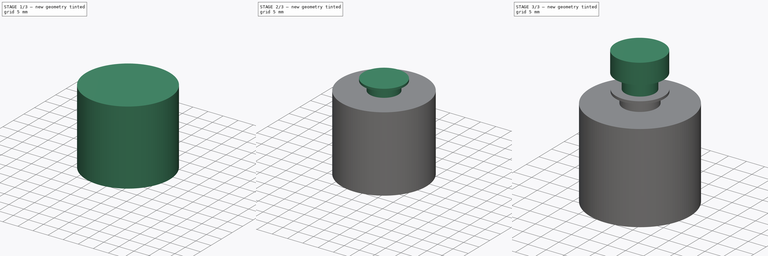
[diagram: build sequence overview — one tinted view per stage of 3, left to right]
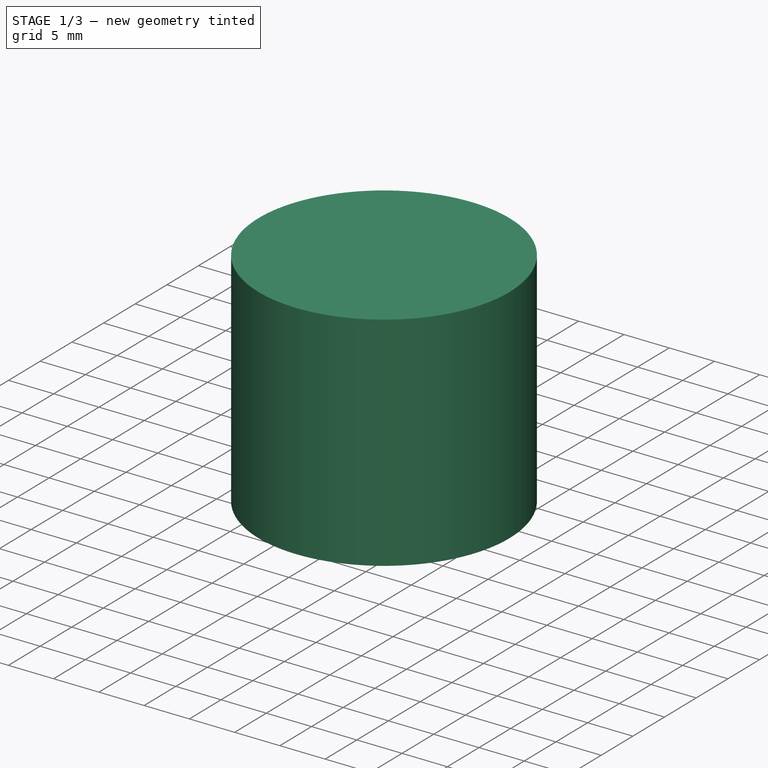
[diagram: stage 1 of 3 — iso view after this stage's code; geometry added in this stage tinted green]
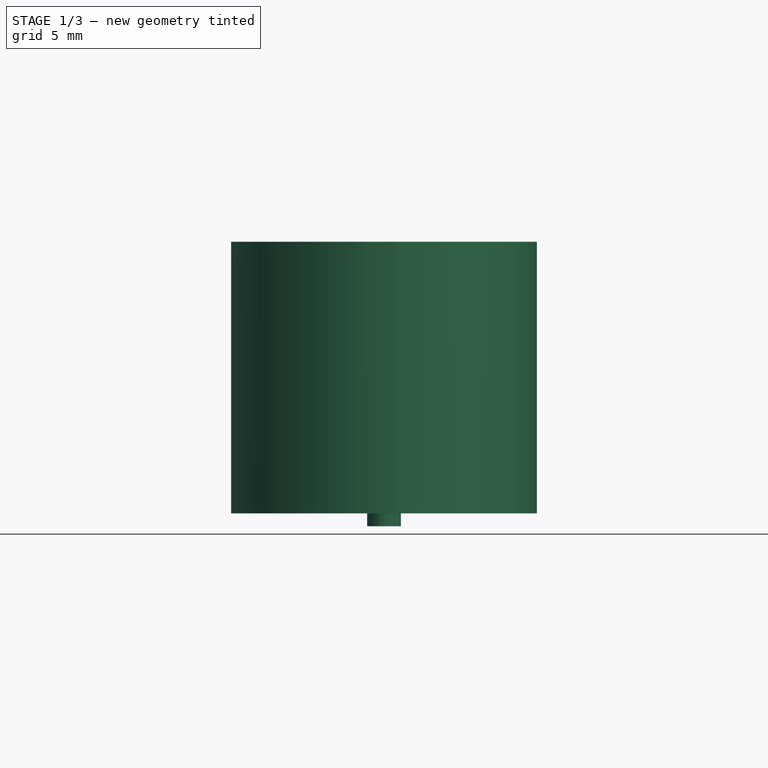
[diagram: stage 1 of 3 — front view after this stage's code; geometry added in this stage tinted green]
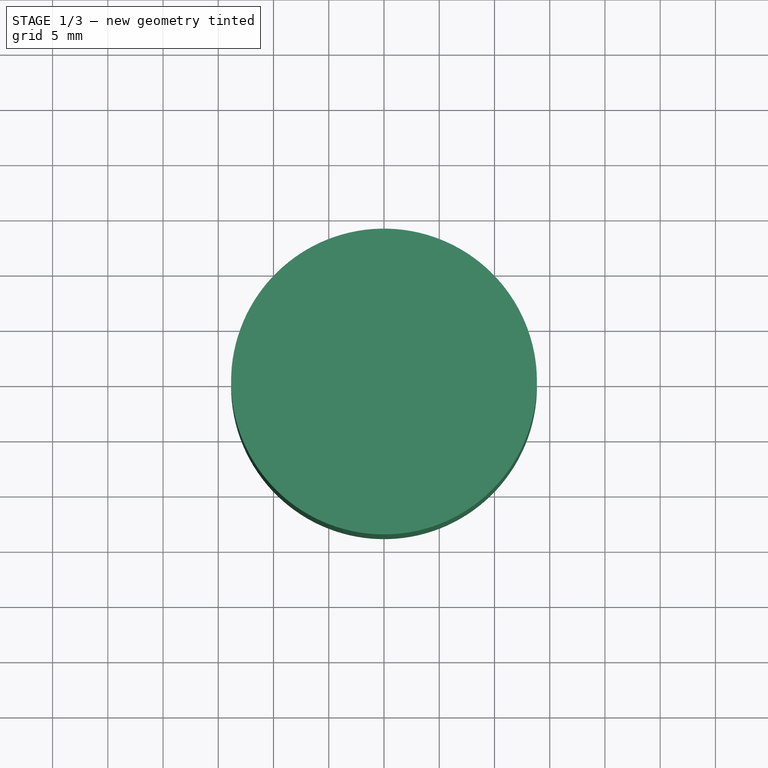
[diagram: stage 1 of 3 — top view after this stage's code; geometry added in this stage tinted green]
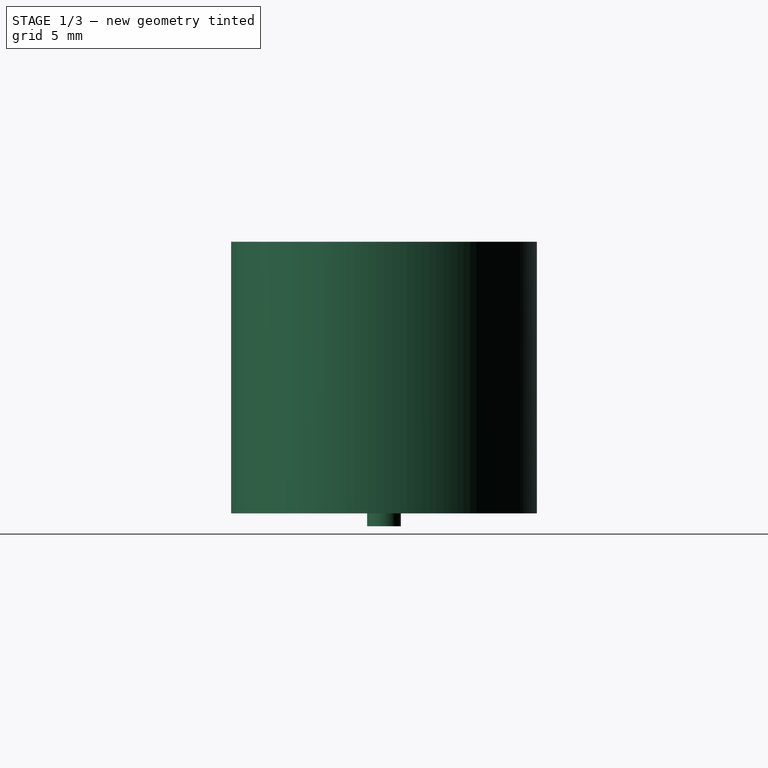
[diagram: stage 1 of 3 — right view after this stage's code; geometry added in this stage tinted green]
FCSTD DOCUMENT  (FreeCAD 0.17R13522 (Git))
Label: weapon_motor
License: All rights reserved
LicenseURL: http://en.wikipedia.org/wiki/All_rights_reserved
objects: Sketcher::SketchObject×7, PartDesign::Pad×6, PartDesign::Pocket×1, PartDesign::Body×1
note: 22 computed .brp shape members not serialized (recipe doc carries the construction recipe); baked Part::Feature solids carry a one-line shape summary decoded from their .brp

FEATURE [Sketcher::SketchObject] Sketch
  MapMode = 5
  Support = -> [XY_Plane]
  sketch-geometry (1):
    g0: Circle CenterX=0 CenterY=0 CenterZ=0 NormalX=0 NormalY=0 NormalZ=1 AngleXU=0 Radius=13.843
  constraints (2):
    c: Coincident(g0,g-1)
    c: Radius(g0) = 13.843
FEATURE [PartDesign::Pad] Pad
  Length = 24.5872
  Length2 = 99.9998
  Profile = -> Sketch
  Type = 0
FEATURE [Sketcher::SketchObject] Sketch001
  MapMode = 5
  Placement = pos=(0,0,0) rot=(1,0,0;3.14159rad)
  Support = -> [Pad]
  sketch-geometry (1):
    g0: Circle CenterX=0 CenterY=0 CenterZ=0 NormalX=0 NormalY=0 NormalZ=1 AngleXU=0 Radius=1.524
  constraints (2):
    c: Coincident(g0,g-1)
    c: Radius(g0) = 1.524
FEATURE [PartDesign::Pad] Pad001
  BaseFeature = -> Pad
  Length = 1.1684
  Length2 = 99.9998
  Profile = -> Sketch001
  Type = 0
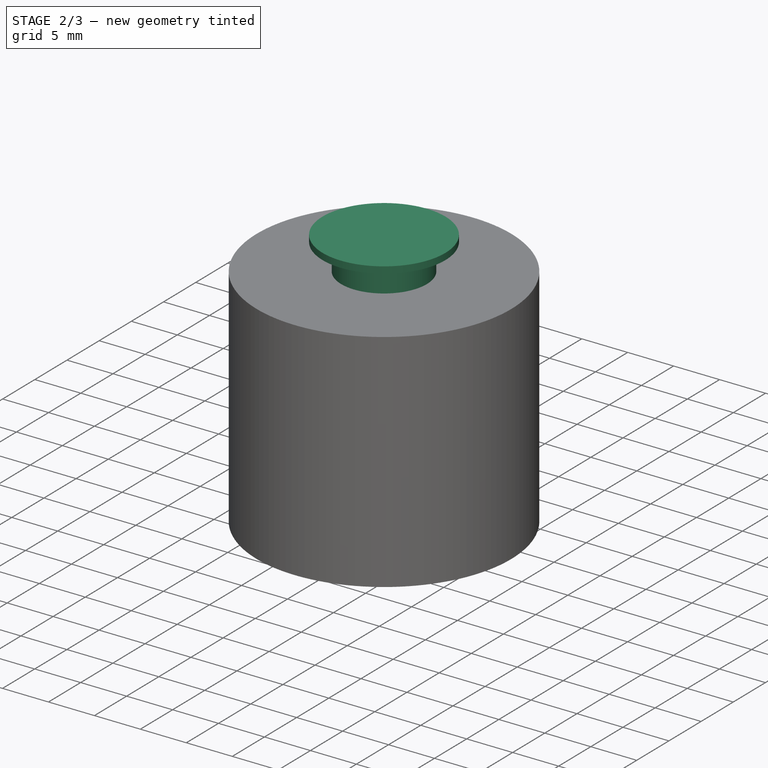
[diagram: stage 2 of 3 — iso view after this stage's code; geometry added in this stage tinted green]
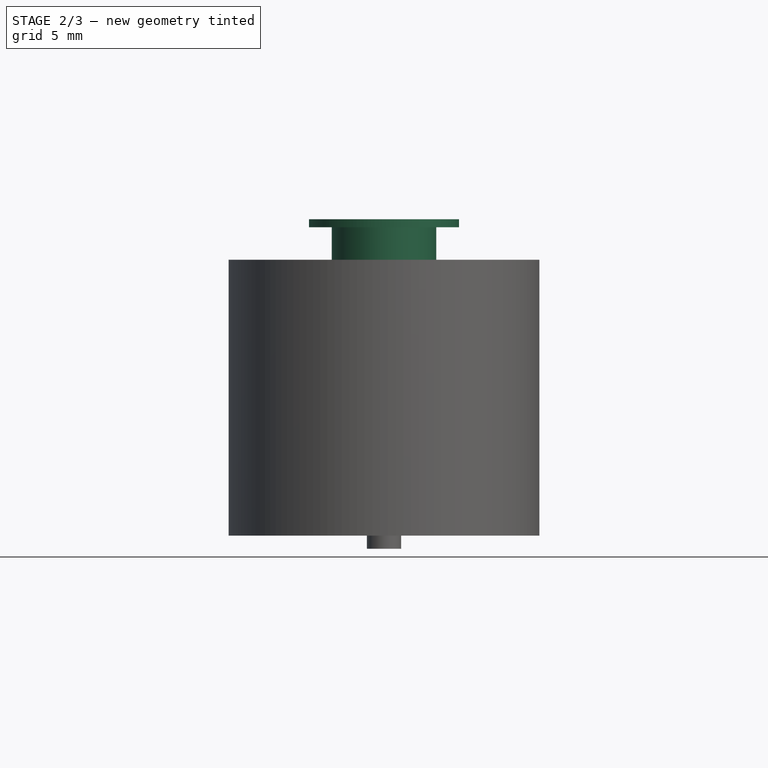
[diagram: stage 2 of 3 — front view after this stage's code; geometry added in this stage tinted green]
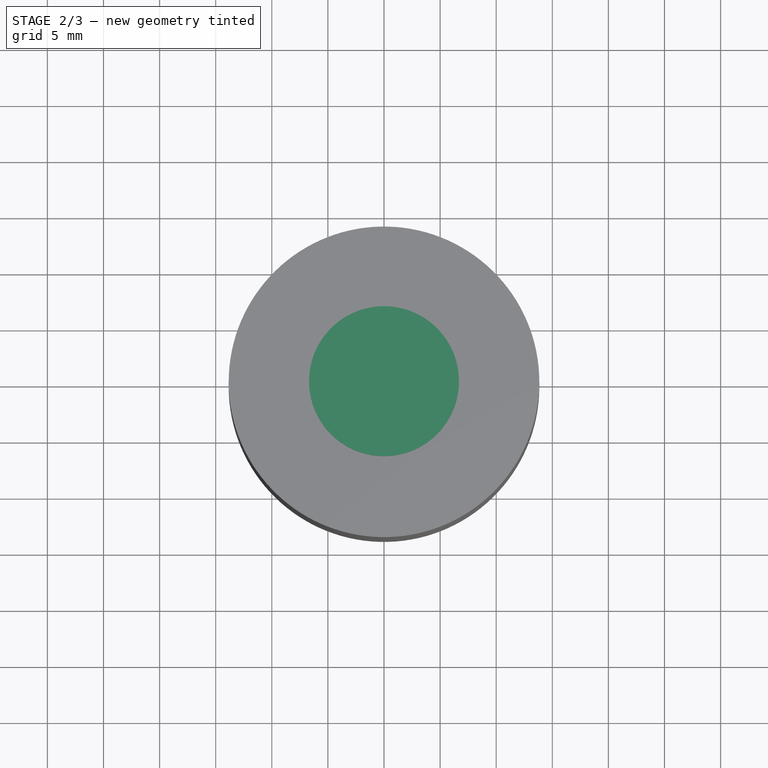
[diagram: stage 2 of 3 — top view after this stage's code; geometry added in this stage tinted green]
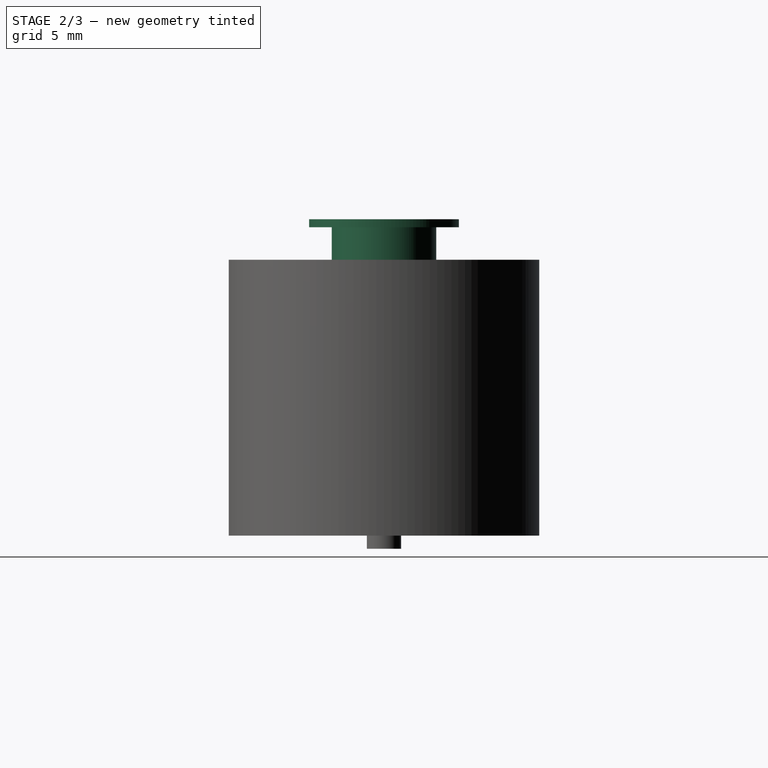
[diagram: stage 2 of 3 — right view after this stage's code; geometry added in this stage tinted green]
FEATURE [Sketcher::SketchObject] Sketch002
  MapMode = 5
  Placement = pos=(0,0,0) rot=(1,0,0;3.14159rad)
  Support = -> [Pad001]
  sketch-geometry (4):
    g0: Circle CenterX=0 CenterY=7.9629 CenterZ=0 NormalX=0 NormalY=0 NormalZ=1 AngleXU=0 Radius=1.27
    g1: Circle CenterX=9.51865 CenterY=0 CenterZ=0 NormalX=0 NormalY=0 NormalZ=1 AngleXU=0 Radius=1.27
    g2: Circle CenterX=0 CenterY=-7.9629 CenterZ=0 NormalX=0 NormalY=0 NormalZ=1 AngleXU=0 Radius=1.27
    g3: Circle CenterX=-9.51865 CenterY=0 CenterZ=0 NormalX=0 NormalY=0 NormalZ=1 AngleXU=0 Radius=1.27
  constraints (12):
    c: PointOnObject(g0,g-2)
    c: PointOnObject(g1,g-1)
    c: PointOnObject(g2,g-2)
    c: PointOnObject(g3,g-1)
    c: Radius(g3) = 1.27
    c: Equal(g3,g0)
    c: Equal(g3,g1)
    c: Equal(g3,g2)
    c: DistanceX(g3,g1) = 19.0373
    c: Symmetric(g3,g1,g-2)
    c: DistanceY(g2,g0) = 15.9258
    c: Symmetric(g0,g2,g-1)
FEATURE [PartDesign::Pocket] Pocket
  BaseFeature = -> Pad001
  Length = 4.7625
  Length2 = 99.9998
  Profile = -> Sketch002
  Type = 0
FEATURE [Sketcher::SketchObject] Sketch003
  MapMode = 5
  Placement = pos=(0,0,24.5872) rot=(0,0,1;0rad)
  Support = -> [Pocket]
  sketch-geometry (1):
    g0: Circle CenterX=0 CenterY=0 CenterZ=0 NormalX=0 NormalY=0 NormalZ=1 AngleXU=0 Radius=4.6609
  constraints (2):
    c: Coincident(g0,g-1)
    c: Radius(g0) = 4.6609
FEATURE [PartDesign::Pad] Pad002
  BaseFeature = -> Pocket
  Length = 2.8956
  Length2 = 99.9998
  Profile = -> Sketch003
  Type = 0
FEATURE [Sketcher::SketchObject] Sketch004
  MapMode = 5
  Placement = pos=(0,0,27.4828) rot=(0,0,1;0rad)
  sketch-geometry (1):
    g0: Circle CenterX=0 CenterY=0 CenterZ=0 NormalX=0 NormalY=0 NormalZ=1 AngleXU=0 Radius=6.6802
  constraints (2):
    c: Coincident(g0,g-1)
    c: Radius(g0) = 6.6802
FEATURE [PartDesign::Pad] Pad003
  BaseFeature = -> Pad002
  Length = 0.7112
  Length2 = 99.9998
  Profile = -> Sketch004
  Type = 0
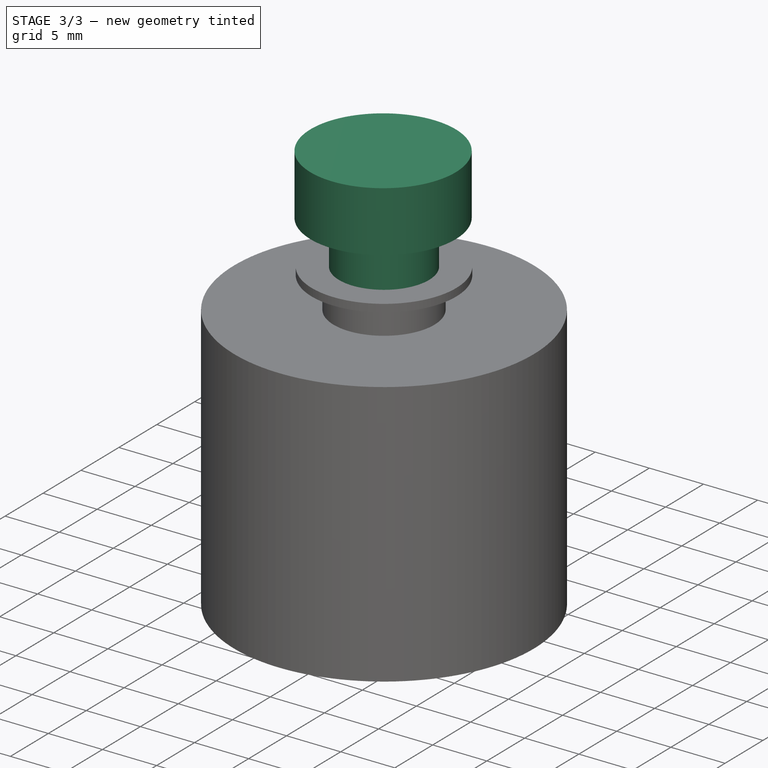
[diagram: stage 3 of 3 — iso view after this stage's code; geometry added in this stage tinted green]
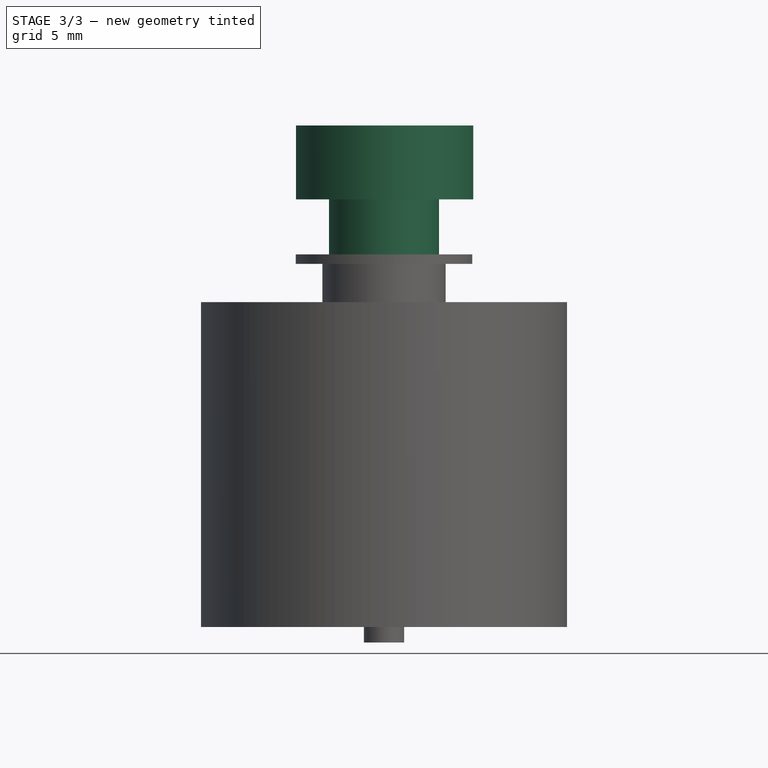
[diagram: stage 3 of 3 — front view after this stage's code; geometry added in this stage tinted green]
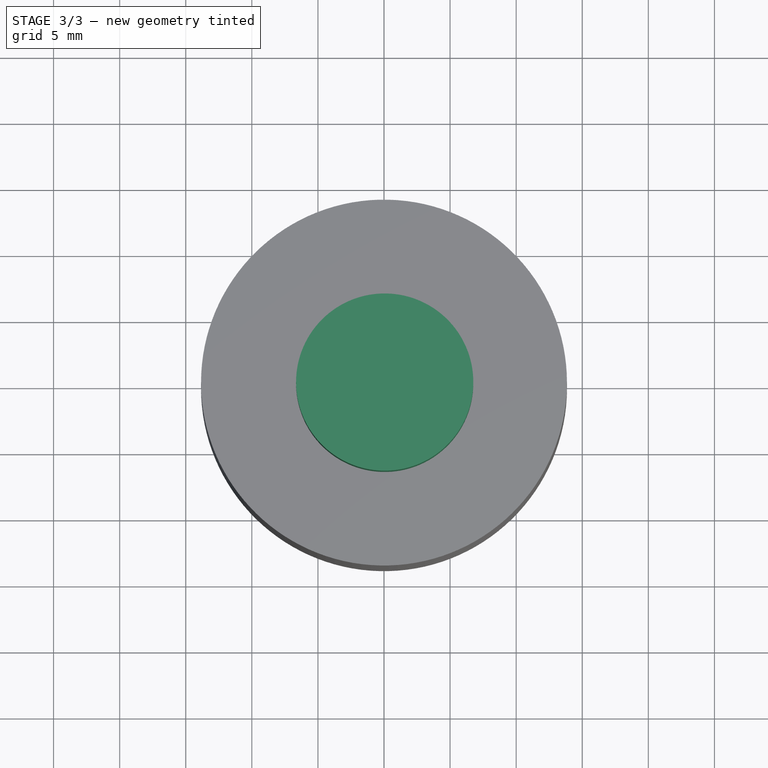
[diagram: stage 3 of 3 — top view after this stage's code; geometry added in this stage tinted green]
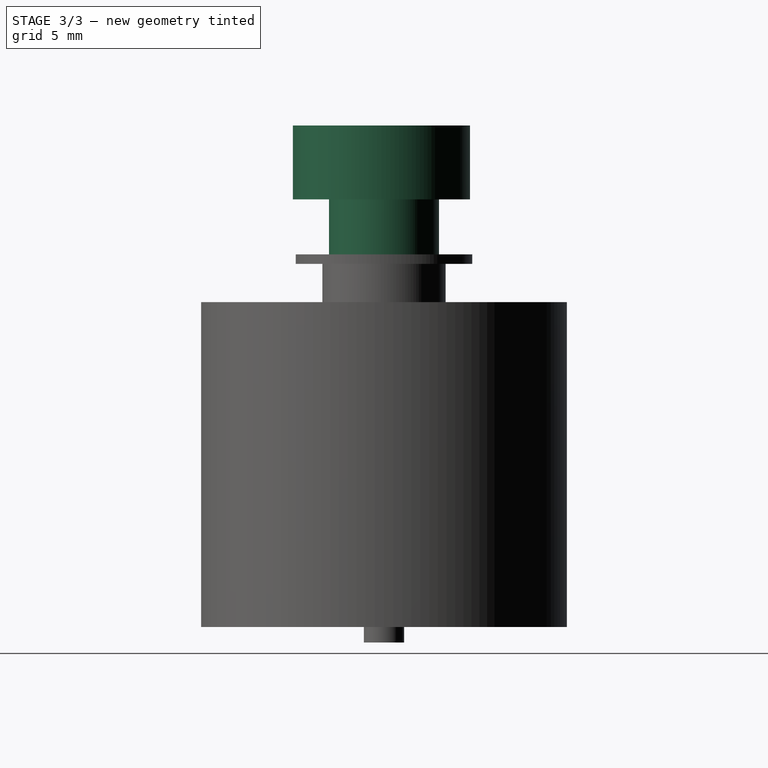
[diagram: stage 3 of 3 — right view after this stage's code; geometry added in this stage tinted green]
FEATURE [Sketcher::SketchObject] Sketch005
  MapMode = 5
  Placement = pos=(0,0,28.194) rot=(0,0,1;0rad)
  Support = -> [Pad003]
  sketch-geometry (1):
    g0: Circle CenterX=0 CenterY=0 CenterZ=0 NormalX=0 NormalY=0 NormalZ=1 AngleXU=0 Radius=4.1656
  constraints (2):
    c: Coincident(g0,g-1)
    c: Radius(g0) = 4.1656
FEATURE [PartDesign::Pad] Pad004
  BaseFeature = -> Pad003
  Length = 4.1656
  Length2 = 99.9998
  Profile = -> Sketch005
  Type = 0
FEATURE [Sketcher::SketchObject] Sketch006
  MapMode = 5
  Placement = pos=(0,0,32.3596) rot=(0,0,1;0rad)
  Support = -> [Pad004]
  sketch-geometry (1):
    g0: Circle CenterX=0.051312 CenterY=-0.194634 CenterZ=0 NormalX=0 NormalY=0 NormalZ=1 AngleXU=0 Radius=6.7056
  constraints (1):
    c: Radius(g0) = 6.7056
FEATURE [PartDesign::Pad] Pad005
  BaseFeature = -> Pad004
  Length = 5.588
  Length2 = 99.9998
  Profile = -> Sketch006
  Type = 0
FEATURE [PartDesign::Body] Body
  Group = -> [Sketch,Pad,Sketch001,Pad001,Sketch002,Pocket,Sketch003,Pad002,Sketch004,Pad003,Sketch005,Pad004,Sketch006,Pad005]
  Origin = -> Origin
  Tip = -> Pad005
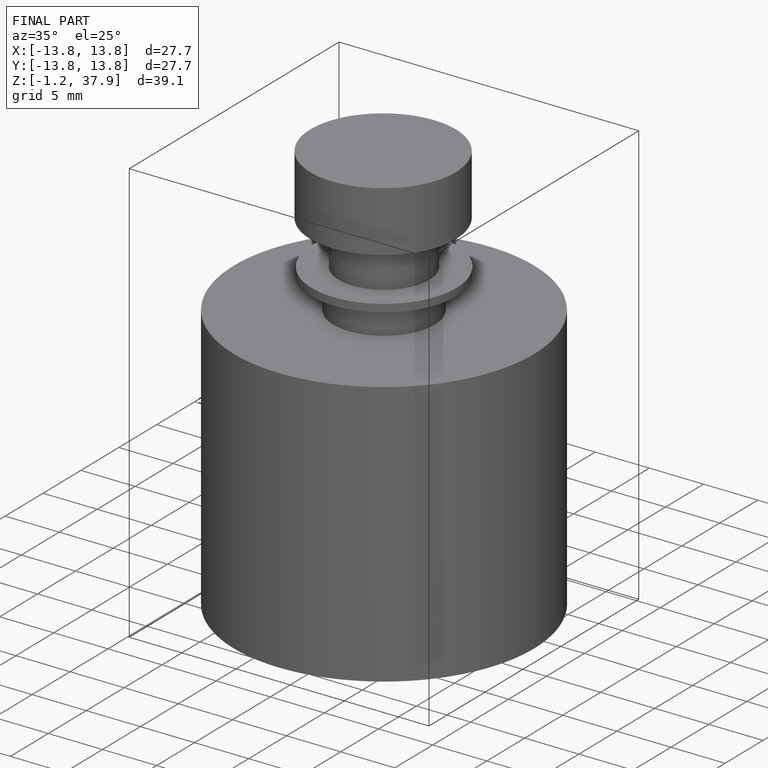
[diagram: finished part — iso view with bounding-box wireframe]
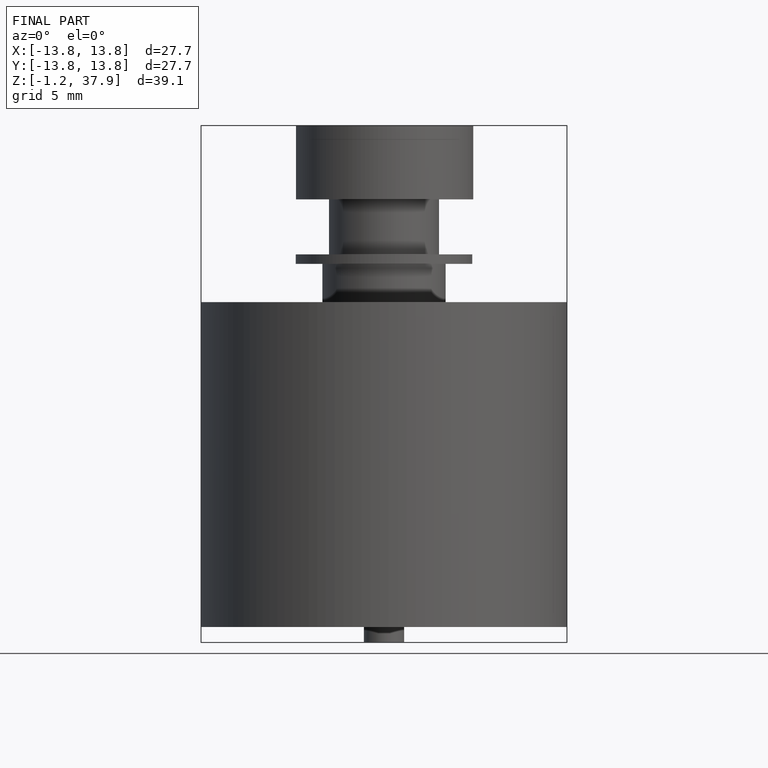
[diagram: finished part — front view with bounding-box wireframe]
